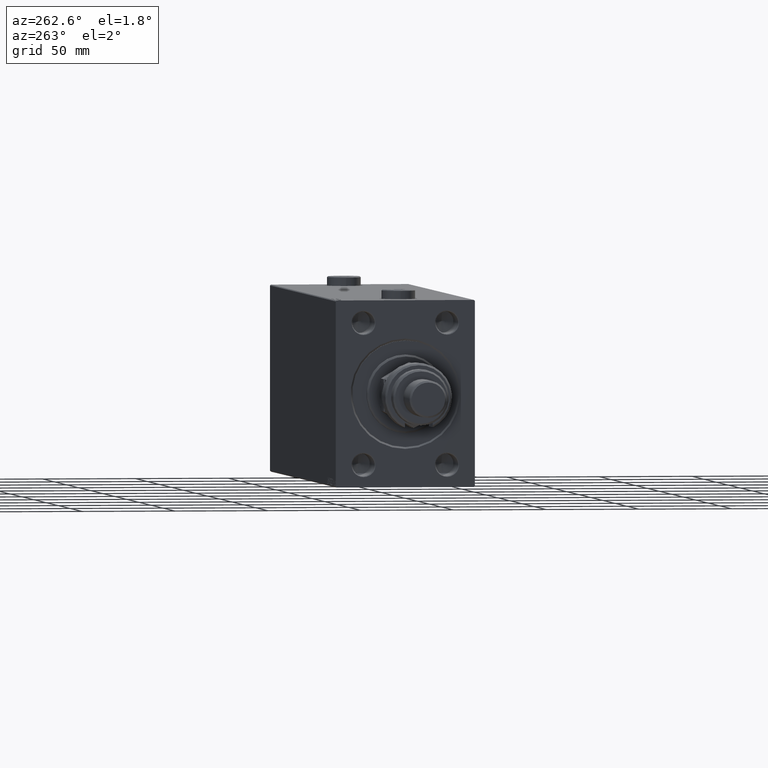
[diagram: clean part render]
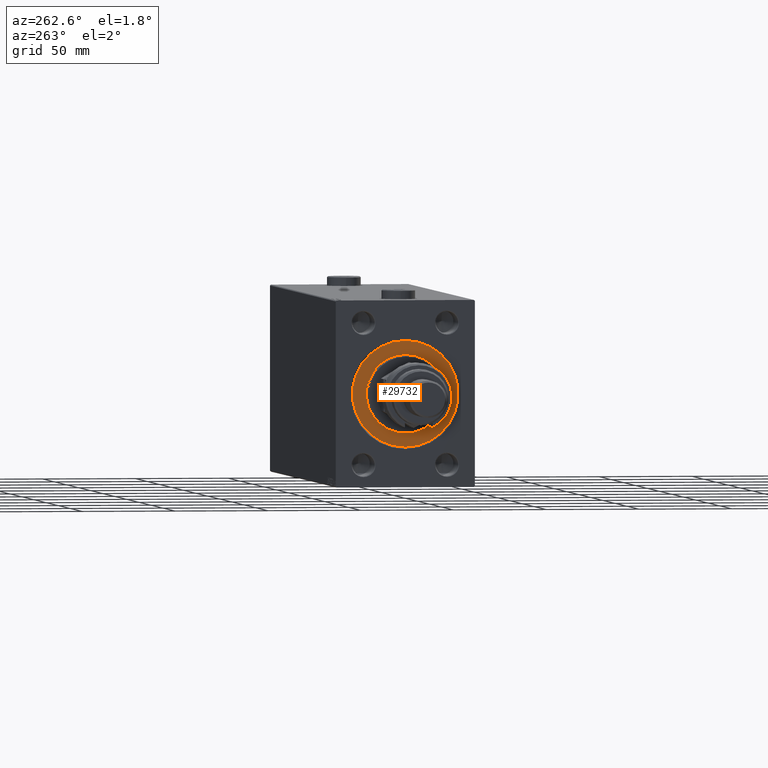
[diagram: same view with one face highlighted and labeled with its STEP entity id]
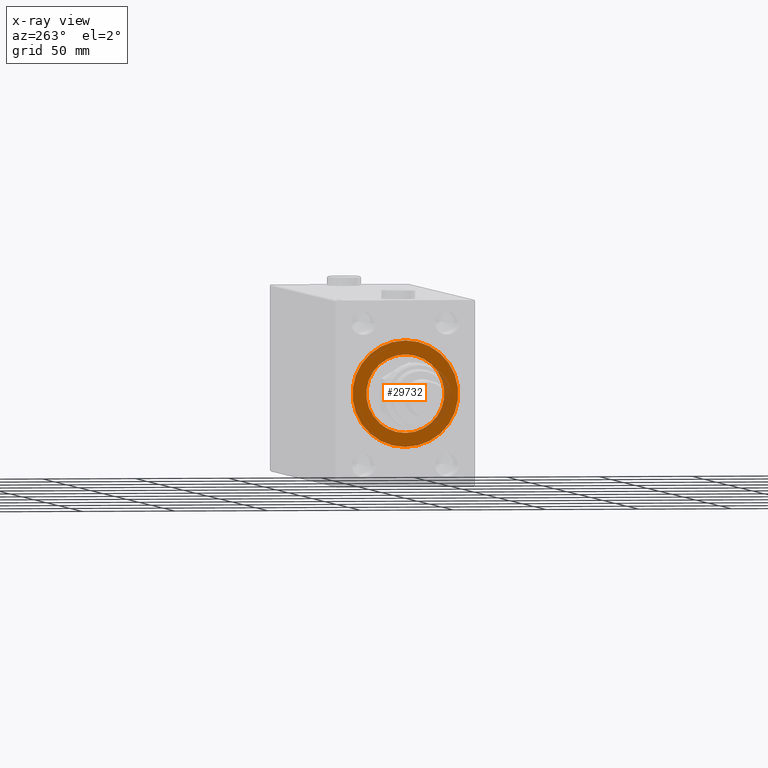
[diagram: x-ray of the same camera — body ghosted, the highlighted face saturated]
A machine part, auxiliary view. The second image highlights one B-rep face of the part: STEP entity #29732.
The next image is the same camera in x-ray: the body ghosted, the highlighted face saturated — about 10% of this face is hidden behind the body in this view.
In plain terms, the highlighted planar face has unit normal (1, -0, -0).
Its self-contained STEP definition (entity closure, byte-faithful):
#52 = ORIENTED_EDGE ( 'NONE', *, *, #45254, .F. ) ;
#996 = FACE_OUTER_BOUND ( 'NONE', #36429, .T. ) ;
#2050 = CARTESIAN_POINT ( 'NONE',  ( 0.000000000000000000, 0.000000000000000000, 0.000000000000000000 ) ) ;
#2315 = DIRECTION ( 'NONE',  ( 0.000000000000000000, 0.000000000000000000, 1.000000000000000000 ) ) ;
#2446 = CIRCLE ( 'NONE', #4807, 28.50000000000000000 ) ;
#4807 = AXIS2_PLACEMENT_3D ( 'NONE', #40101, #6487, #2315 ) ;
#4931 = CARTESIAN_POINT ( 'NONE',  ( 0.000000000000000000, 0.000000000000000000, 0.000000000000000000 ) ) ;
#5082 = AXIS2_PLACEMENT_3D ( 'NONE', #8388, #19915, #27742 ) ;
#5846 = CIRCLE ( 'NONE', #5082, 28.50000000000000000 ) ;
#6487 = DIRECTION ( 'NONE',  ( -1.000000000000000000, 0.000000000000000000, 0.000000000000000000 ) ) ;
#7149 = CARTESIAN_POINT ( 'NONE',  ( 0.000000000000000000, 0.000000000000000000, 21.00000000000000000 ) ) ;
#8388 = CARTESIAN_POINT ( 'NONE',  ( 0.000000000000000000, 0.000000000000000000, 0.000000000000000000 ) ) ;
#10336 = EDGE_LOOP ( 'NONE', ( #11014, #17398 ) ) ;
#10453 = EDGE_CURVE ( 'NONE', #23933, #46115, #35127, .T. ) ;
#11014 = ORIENTED_EDGE ( 'NONE', *, *, #10453, .F. ) ;
#15756 = EDGE_CURVE ( 'NONE', #47336, #31302, #2446, .T. ) ;
#15985 = PLANE ( 'NONE',  #24736 ) ;
#17034 = DIRECTION ( 'NONE',  ( 1.000000000000000000, -0.000000000000000000, 0.000000000000000000 ) ) ;
#17398 = ORIENTED_EDGE ( 'NONE', *, *, #27636, .F. ) ;
#19915 = DIRECTION ( 'NONE',  ( -1.000000000000000000, 0.000000000000000000, 0.000000000000000000 ) ) ;
#20170 = CARTESIAN_POINT ( 'NONE',  ( 0.000000000000000000, 0.000000000000000000, 0.000000000000000000 ) ) ;
#21031 = AXIS2_PLACEMENT_3D ( 'NONE', #2050, #17034, #24149 ) ;
#21511 = AXIS2_PLACEMENT_3D ( 'NONE', #20170, #27061, #38353 ) ;
#23933 = VERTEX_POINT ( 'NONE', #7149 ) ;
#24149 = DIRECTION ( 'NONE',  ( 0.000000000000000000, 0.000000000000000000, -1.000000000000000000 ) ) ;
#24736 = AXIS2_PLACEMENT_3D ( 'NONE', #4931, #30921, #46146 ) ;
#27061 = DIRECTION ( 'NONE',  ( 1.000000000000000000, -0.000000000000000000, 0.000000000000000000 ) ) ;
#27636 = EDGE_CURVE ( 'NONE', #46115, #23933, #28575, .T. ) ;
#27742 = DIRECTION ( 'NONE',  ( 0.000000000000000000, 0.000000000000000000, 1.000000000000000000 ) ) ;
#28575 = CIRCLE ( 'NONE', #21511, 21.00000000000000000 ) ;
#29732 = ADVANCED_FACE ( 'NONE', ( #35320, #996 ), #15985, .F. ) ;
#30047 = CARTESIAN_POINT ( 'NONE',  ( 0.000000000000000000, 0.000000000000000000, -28.50000000000000000 ) ) ;
#30921 = DIRECTION ( 'NONE',  ( -1.000000000000000000, 0.000000000000000000, 0.000000000000000000 ) ) ;
#31302 = VERTEX_POINT ( 'NONE', #44087 ) ;
#35127 = CIRCLE ( 'NONE', #21031, 21.00000000000000000 ) ;
#35320 = FACE_BOUND ( 'NONE', #10336, .T. ) ;
#36429 = EDGE_LOOP ( 'NONE', ( #38104, #52 ) ) ;
#38104 = ORIENTED_EDGE ( 'NONE', *, *, #15756, .F. ) ;
#38353 = DIRECTION ( 'NONE',  ( 0.000000000000000000, 0.000000000000000000, -1.000000000000000000 ) ) ;
#40101 = CARTESIAN_POINT ( 'NONE',  ( 0.000000000000000000, 0.000000000000000000, 0.000000000000000000 ) ) ;
#42177 = CARTESIAN_POINT ( 'NONE',  ( 0.000000000000000000, 2.571758278209441661E-15, -21.00000000000000000 ) ) ;
#44087 = CARTESIAN_POINT ( 'NONE',  ( 0.000000000000000000, 3.490243377569956456E-15, 28.50000000000000000 ) ) ;
#45254 = EDGE_CURVE ( 'NONE', #31302, #47336, #5846, .T. ) ;
#46115 = VERTEX_POINT ( 'NONE', #42177 ) ;
#46146 = DIRECTION ( 'NONE',  ( 0.000000000000000000, 0.000000000000000000, 1.000000000000000000 ) ) ;
#47336 = VERTEX_POINT ( 'NONE', #30047 ) ;